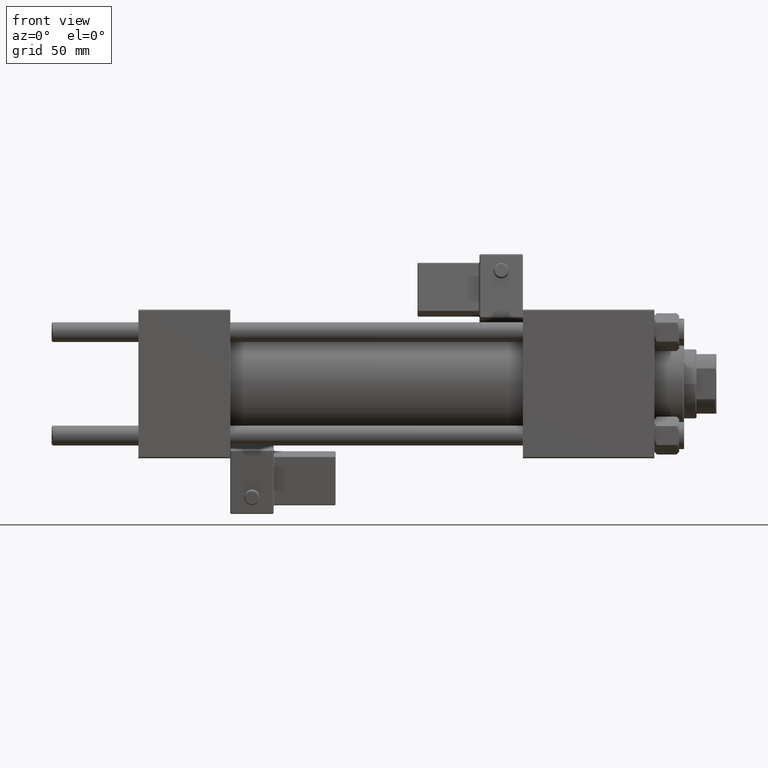
[diagram: clean part render]
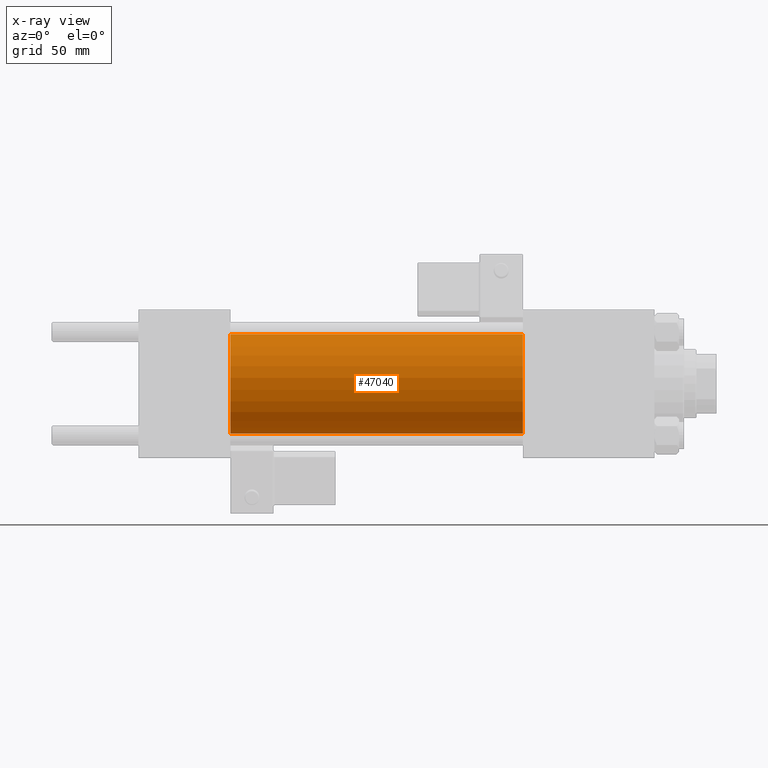
[diagram: x-ray — body ghosted, one internal face saturated and labeled with its STEP entity id]
A machine part, front view, then the same camera in x-ray: the body is ghosted and one INTERNAL B-rep face — a face not visible from any outside direction — is saturated and labeled: STEP entity #47040.
In plain terms, the highlighted cylindrical surface (partial cylindrical patch) has radius 20 mm, axis along (-1, -0, -0).
Its self-contained STEP definition (entity closure, byte-faithful):
#1686 = AXIS2_PLACEMENT_3D ( 'NONE', #4144, #41012, #28392 ) ;
#4022 = EDGE_CURVE ( 'NONE', #33216, #11515, #18154, .T. ) ;
#4144 = CARTESIAN_POINT ( 'NONE',  ( 37.00000000000000000, 0.000000000000000000, 0.000000000000000000 ) ) ;
#5610 = ORIENTED_EDGE ( 'NONE', *, *, #10008, .F. ) ;
#6899 = ORIENTED_EDGE ( 'NONE', *, *, #42162, .T. ) ;
#8378 = DIRECTION ( 'NONE',  ( -1.000000000000000000, -0.000000000000000000, -0.000000000000000000 ) ) ;
#10008 = EDGE_CURVE ( 'NONE', #29175, #41026, #28396, .T. ) ;
#10823 = DIRECTION ( 'NONE',  ( 1.000000000000000000, 0.000000000000000000, 0.000000000000000000 ) ) ;
#11515 = VERTEX_POINT ( 'NONE', #13209 ) ;
#13034 = VECTOR ( 'NONE', #8378, 1000.000000000000000 ) ;
#13209 = CARTESIAN_POINT ( 'NONE',  ( 37.00000000000000000, 2.449293598294706513E-15, -20.00000000000000000 ) ) ;
#18154 = LINE ( 'NONE', #45787, #25553 ) ;
#18479 = CARTESIAN_POINT ( 'NONE',  ( 155.0000000000000000, 0.000000000000000000, 0.000000000000000000 ) ) ;
#18614 = AXIS2_PLACEMENT_3D ( 'NONE', #51928, #36621, #44024 ) ;
#19820 = FACE_OUTER_BOUND ( 'NONE', #42902, .T. ) ;
#25282 = CIRCLE ( 'NONE', #37058, 20.00000000000000000 ) ;
#25553 = VECTOR ( 'NONE', #38400, 1000.000000000000000 ) ;
#26880 = EDGE_CURVE ( 'NONE', #41026, #11515, #46290, .T. ) ;
#28392 = DIRECTION ( 'NONE',  ( 0.000000000000000000, 0.000000000000000000, -1.000000000000000000 ) ) ;
#28396 = LINE ( 'NONE', #44452, #13034 ) ;
#29175 = VERTEX_POINT ( 'NONE', #33581 ) ;
#29550 = ORIENTED_EDGE ( 'NONE', *, *, #26880, .F. ) ;
#30029 = CARTESIAN_POINT ( 'NONE',  ( 37.00000000000000000, 0.000000000000000000, 20.00000000000000000 ) ) ;
#33216 = VERTEX_POINT ( 'NONE', #49336 ) ;
#33581 = CARTESIAN_POINT ( 'NONE',  ( 155.0000000000000000, 0.000000000000000000, 20.00000000000000000 ) ) ;
#34499 = DIRECTION ( 'NONE',  ( 0.000000000000000000, 0.000000000000000000, -1.000000000000000000 ) ) ;
#36621 = DIRECTION ( 'NONE',  ( -1.000000000000000000, -0.000000000000000000, -0.000000000000000000 ) ) ;
#37058 = AXIS2_PLACEMENT_3D ( 'NONE', #18479, #10823, #34499 ) ;
#37967 = ORIENTED_EDGE ( 'NONE', *, *, #4022, .T. ) ;
#38400 = DIRECTION ( 'NONE',  ( -1.000000000000000000, -0.000000000000000000, -0.000000000000000000 ) ) ;
#40842 = CYLINDRICAL_SURFACE ( 'NONE', #18614, 20.00000000000000000 ) ;
#41012 = DIRECTION ( 'NONE',  ( 1.000000000000000000, 0.000000000000000000, 0.000000000000000000 ) ) ;
#41026 = VERTEX_POINT ( 'NONE', #30029 ) ;
#42162 = EDGE_CURVE ( 'NONE', #29175, #33216, #25282, .T. ) ;
#42902 = EDGE_LOOP ( 'NONE', ( #6899, #37967, #29550, #5610 ) ) ;
#44024 = DIRECTION ( 'NONE',  ( 0.000000000000000000, 0.000000000000000000, 1.000000000000000000 ) ) ;
#44452 = CARTESIAN_POINT ( 'NONE',  ( 155.0000000000000000, 0.000000000000000000, 20.00000000000000000 ) ) ;
#45787 = CARTESIAN_POINT ( 'NONE',  ( 155.0000000000000000, 2.449293598294706513E-15, -20.00000000000000000 ) ) ;
#46290 = CIRCLE ( 'NONE', #1686, 20.00000000000000000 ) ;
#47040 = ADVANCED_FACE ( 'NONE', ( #19820 ), #40842, .F. ) ;
#49336 = CARTESIAN_POINT ( 'NONE',  ( 155.0000000000000000, 2.449293598294706513E-15, -20.00000000000000000 ) ) ;
#51928 = CARTESIAN_POINT ( 'NONE',  ( 155.0000000000000000, 0.000000000000000000, 0.000000000000000000 ) ) ;